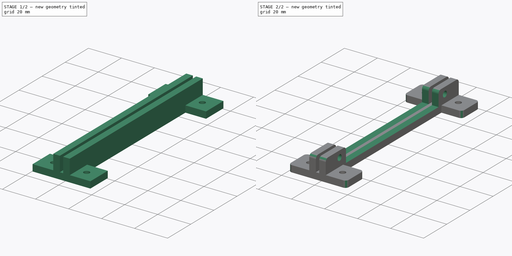
[diagram: build sequence overview — one tinted view per stage of 2, left to right]
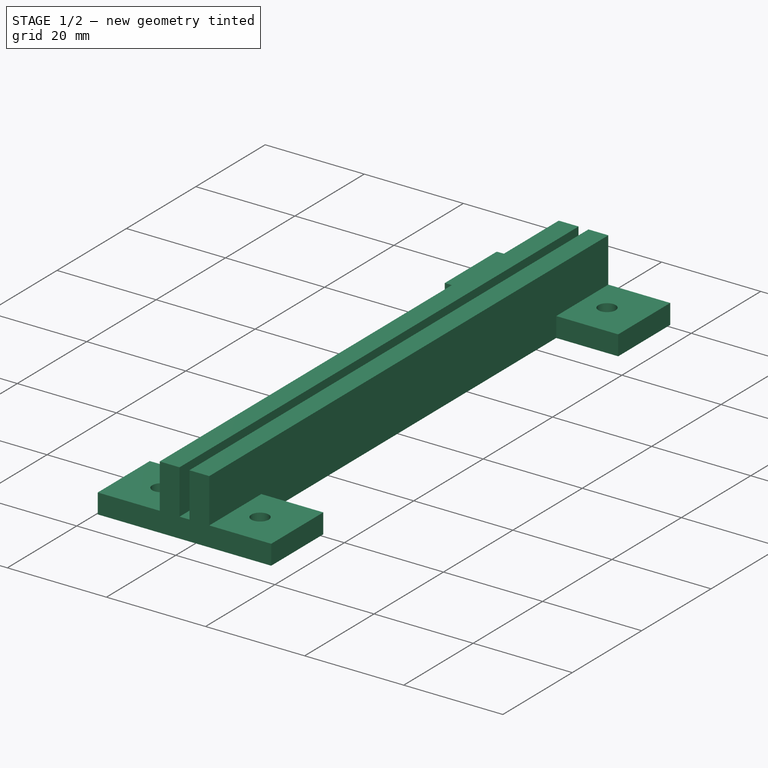
[diagram: stage 1 of 2 — iso view after this stage's code; geometry added in this stage tinted green]
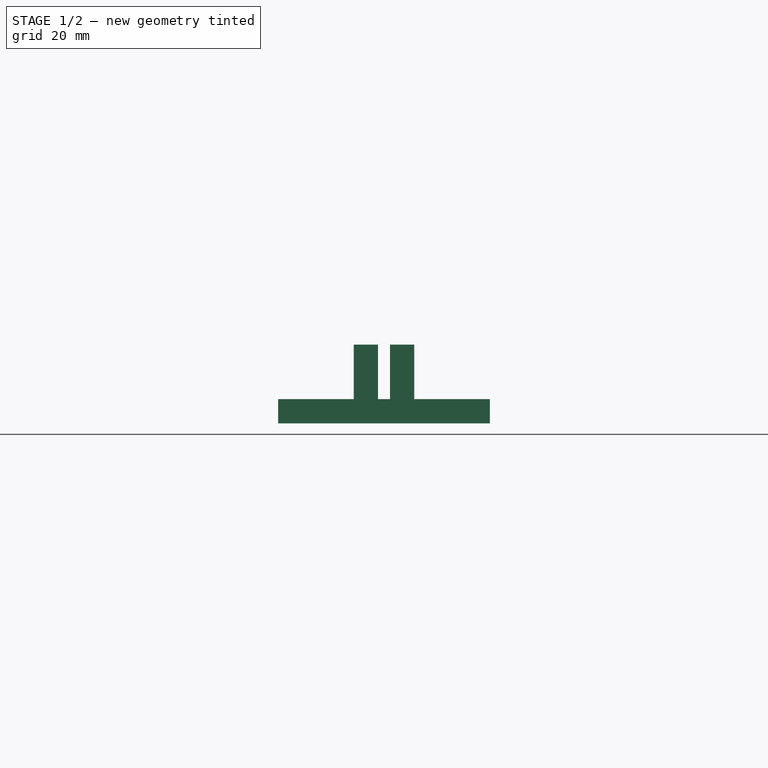
[diagram: stage 1 of 2 — front view after this stage's code; geometry added in this stage tinted green]
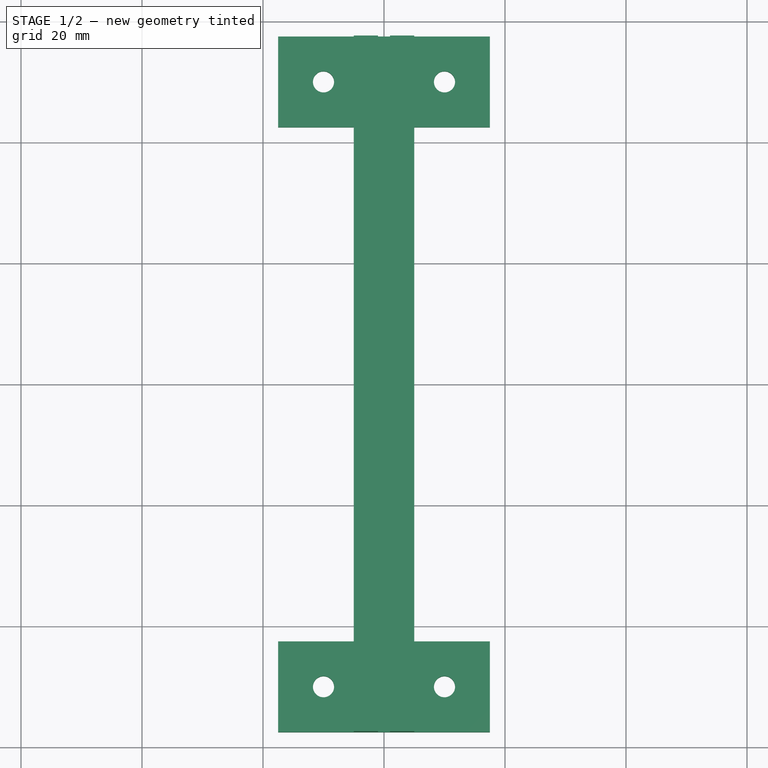
[diagram: stage 1 of 2 — top view after this stage's code; geometry added in this stage tinted green]
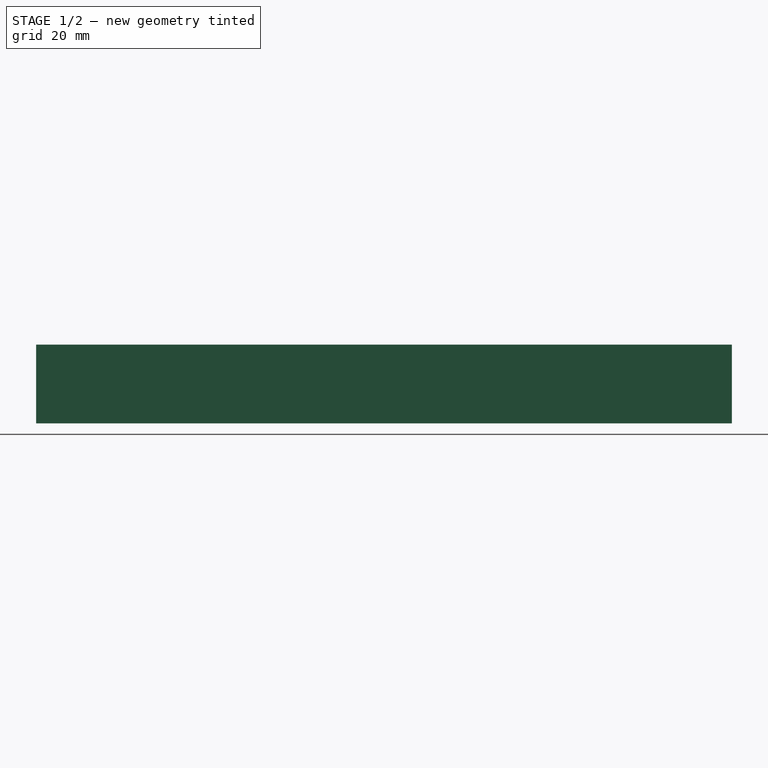
[diagram: stage 1 of 2 — right view after this stage's code; geometry added in this stage tinted green]
FCSTD DOCUMENT  (FreeCAD 0.21R33668 +26 (Git))
Label: KM5GT_Board_Mounting_Bracket_V12
License: All rights reserved
LicenseURL: http://en.wikipedia.org/wiki/All_rights_reserved
objects: Sketcher::SketchObject×3, PartDesign::Pad×2, PartDesign::Pocket×1, PartDesign::Fillet×1, PartDesign::Body×1
note: 12 computed .brp shape members not serialized (recipe doc carries the construction recipe); baked Part::Feature solids carry a one-line shape summary decoded from their .brp

FEATURE [Sketcher::SketchObject] Sketch  label="base"
  FullyConstrained = true
  MapMode = 5
  Support = -> [XY_Plane]
  expr: .Constraints.insideEdge = 85 mm / 2
  expr: Constraints[35] = -.Constraints.hOffset
  expr: Constraints[36] = -.Constraints.hOffset
  expr: Constraints[37] = .Constraints.hOffset
  expr: Constraints[39] = .Constraints.vOffset
  expr: Constraints[40] = -.Constraints.vOffset
  expr: Constraints[41] = -.Constraints.vOffset
  sketch-geometry (16):
    g0: LineSegment StartX=-17.5 StartY=57.5 StartZ=0 EndX=17.5 EndY=57.5 EndZ=0
    g1: LineSegment StartX=17.5 StartY=57.5 StartZ=0 EndX=17.5 EndY=42.5 EndZ=0
    g2: LineSegment StartX=17.5 StartY=42.5 StartZ=0 EndX=5 EndY=42.5 EndZ=0
    g3: LineSegment StartX=5 StartY=42.5 StartZ=0 EndX=5 EndY=-42.5 EndZ=0
    g4: LineSegment StartX=5 StartY=-42.5 StartZ=0 EndX=17.5 EndY=-42.5 EndZ=0
    g5: LineSegment StartX=17.5 StartY=-42.5 StartZ=0 EndX=17.5 EndY=-57.5 EndZ=0
    g6: LineSegment StartX=17.5 StartY=-57.5 StartZ=0 EndX=-17.5 EndY=-57.5 EndZ=0
    g7: LineSegment StartX=-17.5 StartY=-57.5 StartZ=0 EndX=-17.5 EndY=-42.5 EndZ=0
    g8: LineSegment StartX=-17.5 StartY=-42.5 StartZ=0 EndX=-5 EndY=-42.5 EndZ=0
    g9: LineSegment StartX=-5 StartY=-42.5 StartZ=0 EndX=-5 EndY=42.5 EndZ=0
    g10: LineSegment StartX=-5 StartY=42.5 StartZ=0 EndX=-17.5 EndY=42.5 EndZ=0
    g11: LineSegment StartX=-17.5 StartY=42.5 StartZ=0 EndX=-17.5 EndY=57.5 EndZ=0
    g12: Circle CenterX=-10 CenterY=50 CenterZ=0 NormalX=0 NormalY=0 NormalZ=1 AngleXU=0 Radius=1.75
    g13: Circle CenterX=10 CenterY=50 CenterZ=0 NormalX=0 NormalY=0 NormalZ=1 AngleXU=0 Radius=1.75
    g14: Circle CenterX=-10 CenterY=-50 CenterZ=0 NormalX=0 NormalY=0 NormalZ=1 AngleXU=0 Radius=1.75
    g15: Circle CenterX=10 CenterY=-50 CenterZ=0 NormalX=0 NormalY=0 NormalZ=1 AngleXU=0 Radius=1.75
  constraints (44):
    c: Coincident(g0,g1)
    c: Vertical(g1)
    c: Coincident(g1,g2)
    c: Horizontal(g2)
    c: Coincident(g2,g3)
    c: Coincident(g3,g4)
    c: Coincident(g4,g5)
    c: Vertical(g5)
    c: Coincident(g5,g6)
    c: Coincident(g6,g7)
    c: Vertical(g7)
    c: Coincident(g7,g8)
    c: Coincident(g8,g9)
    c: Vertical(g9)
    c: Coincident(g9,g10)
    c: Coincident(g10,g11)
    c: Coincident(g11,g0)
    c: Vertical(g11)
    c: Horizontal(g10)
    c: Symmetric(g0,g0,g-2)
    c: Symmetric(g6,g5,g-2)
    c: Symmetric(g2,g9,g-2)
    c: DistanceY(g11,g11) = 15
    c: Equal(g1,g7)
    c: Equal(g7,g5)
    c: Horizontal(g8)
    c: Horizontal(g4)
    c: DistanceX(g0,g0) = 35
    c: Equal(g0,g6)
    c: Distance(g8,g3) = 10  'wCenterBase'
    c: Symmetric(g2,g3,g-1)
    c: Equal(g12,g13)
    c: Equal(g12,g14)
    c: Equal(g12,g15)
    c: Diameter(g12) = 3.5
    c: DistanceX(g-2,g12) = -10
    c: DistanceX(g-2,g14) = -10
    c: DistanceX(g-2,g15) = 10
    c: DistanceY(g-1,g12) = 50  'vOffset'
    c: DistanceY(g-1,g13) = 50
    c: DistanceY(g-1,g14) = -50
    c: DistanceY(g-1,g15) = -50
    c: DistanceY(g-1,g10) = 42.5  'insideEdge'
    c: DistanceX(g-2,g13) = 10  'hOffset'
FEATURE [PartDesign::Pad] Pad  label="basePad"
  Direction = (0,0,1)
  Length = 4
  Length2 = 10
  Profile = -> Sketch
  ReferenceAxis = -> Sketch [N_Axis]
  Type = 0
FEATURE [Sketcher::SketchObject] Sketch001  label="pcbHolder"
  ExternalGeometry = -> [Sketch]
  FullyConstrained = true
  MapMode = 5
  Support = -> [XY_Plane]
  expr: .Constraints.holderWidth = (.Constraints.overallWidth - 2 mm) / 2
  expr: Constraints[24] = .Constraints.holderWidth
  sketch-geometry (8):
    g0: LineSegment StartX=-1 StartY=57.5 StartZ=0 EndX=-5 EndY=57.5 EndZ=0
    g1: LineSegment StartX=-5 StartY=57.5 StartZ=0 EndX=-5 EndY=-57.5 EndZ=0
    g2: LineSegment StartX=-5 StartY=-57.5 StartZ=0 EndX=-1 EndY=-57.5 EndZ=0
    g3: LineSegment StartX=-1 StartY=-57.5 StartZ=0 EndX=-1 EndY=57.5 EndZ=0
    g4: LineSegment StartX=5 StartY=57.5 StartZ=0 EndX=1 EndY=57.5 EndZ=0
    g5: LineSegment StartX=1 StartY=57.5 StartZ=0 EndX=1 EndY=-57.5 EndZ=0
    g6: LineSegment StartX=1 StartY=-57.5 StartZ=0 EndX=5 EndY=-57.5 EndZ=0
    g7: LineSegment StartX=5 StartY=-57.5 StartZ=0 EndX=5 EndY=57.5 EndZ=0
  constraints (25):
    c: Coincident(g0,g1)
    c: Coincident(g1,g2)
    c: Coincident(g2,g3)
    c: Coincident(g3,g0)
    c: Horizontal(g0)
    c: Horizontal(g2)
    c: Vertical(g1)
    c: Vertical(g3)
    c: PointOnObject(g0,g-3)
    c: PointOnObject(g1,g-4)
    c: Coincident(g4,g5)
    c: Coincident(g5,g6)
    c: Coincident(g6,g7)
    c: Coincident(g7,g4)
    c: Horizontal(g4)
    c: Horizontal(g6)
    c: Vertical(g5)
    c: Vertical(g7)
    c: PointOnObject(g4,g-3)
    c: PointOnObject(g5,g-4)
    c: PointOnObject(g-5,g1)
    c: PointOnObject(g-6,g7)
    c: Distance(g-5,g-6) = 10  'overallWidth'
    c: Distance(g0) = 4  'holderWidth'
    c: Distance(g4) = 4
FEATURE [PartDesign::Pad] Pad001  label="pcbHolderPad"
  BaseFeature = -> Pad
  Direction = (0,0,1)
  Length = 13
  Length2 = 10
  Profile = -> Sketch001
  ReferenceAxis = -> Sketch001 [N_Axis]
  Type = 0
  expr: Length = <<basePad>>.Length + 9 mm
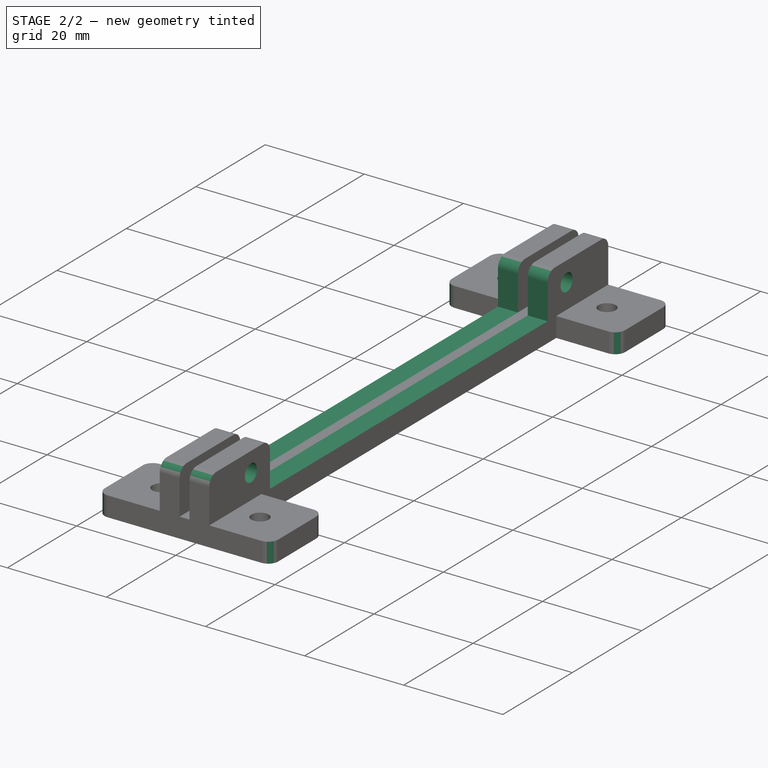
[diagram: stage 2 of 2 — iso view after this stage's code; geometry added in this stage tinted green]
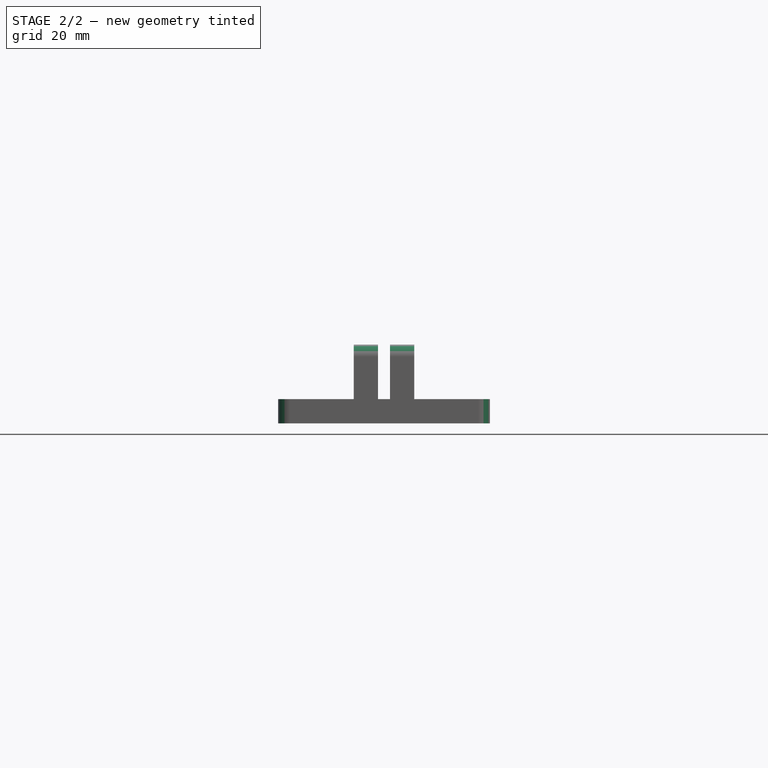
[diagram: stage 2 of 2 — front view after this stage's code; geometry added in this stage tinted green]
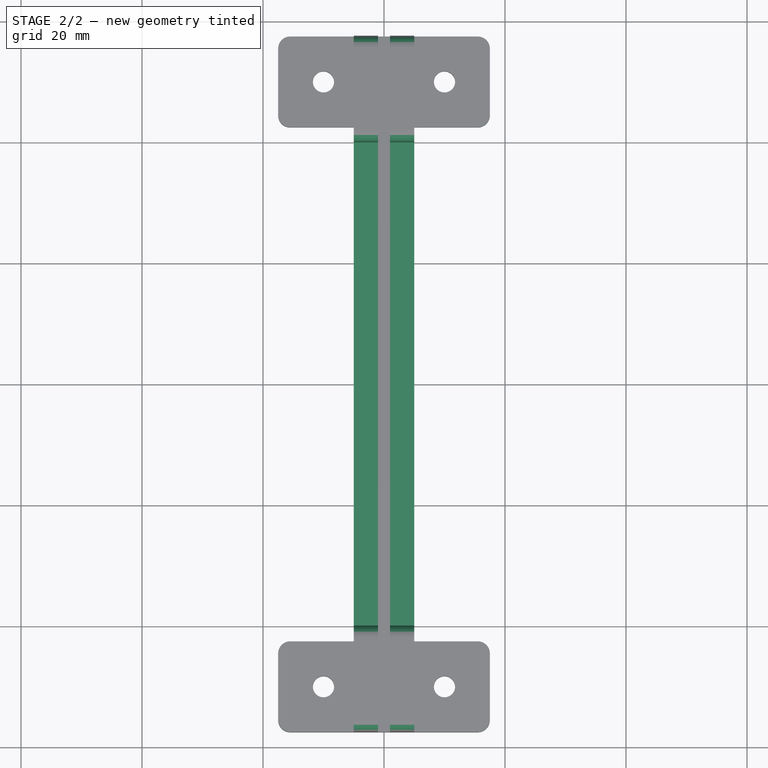
[diagram: stage 2 of 2 — top view after this stage's code; geometry added in this stage tinted green]
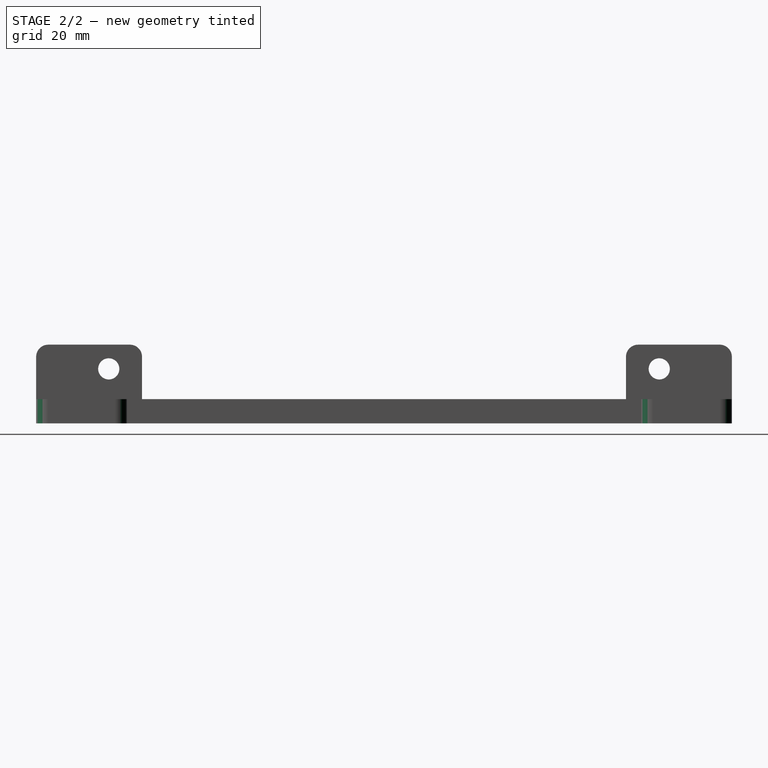
[diagram: stage 2 of 2 — right view after this stage's code; geometry added in this stage tinted green]
FEATURE [Sketcher::SketchObject] Sketch002  label="pcbCutout"
  FullyConstrained = true
  MapMode = 5
  Placement = pos=(0,0,0) rot=(0.57735,0.57735,0.57735;2.0944rad)
  Support = -> [YZ_Plane]
  expr: .Constraints.vHoleOffset = <<basePad>>.Length + 5 mm
  expr: Constraints[15] = -.Constraints.slotToCenterline
  expr: Constraints[17] = <<basePad>>.Length
  expr: Constraints[1] = -.Constraints.hHoleOffset
  expr: Constraints[3] = .Constraints.vHoleOffset
  sketch-geometry (6):
    g0: Circle CenterX=45.5 CenterY=9 CenterZ=0 NormalX=0 NormalY=0 NormalZ=1 AngleXU=0 Radius=1.75
    g1: Circle CenterX=-45.5 CenterY=9 CenterZ=0 NormalX=0 NormalY=0 NormalZ=1 AngleXU=0 Radius=1.75
    g2: LineSegment StartX=-40 StartY=13 StartZ=0 EndX=40 EndY=13 EndZ=0
    g3: LineSegment StartX=40 StartY=13 StartZ=0 EndX=40 EndY=4 EndZ=0
    g4: LineSegment StartX=40 StartY=4 StartZ=0 EndX=-40 EndY=4 EndZ=0
    g5: LineSegment StartX=-40 StartY=4 StartZ=0 EndX=-40 EndY=13 EndZ=0
  constraints (18):
    c: DistanceX(g-2,g0) = 45.5  'hHoleOffset'
    c: DistanceX(g-2,g1) = -45.5
    c: DistanceY(g-1,g1) = 9  'vHoleOffset'
    c: DistanceY(g-1,g0) = 9
    c: Diameter(g1) = 3.5  'holeDiameter'
    c: Equal(g1,g0)
    c: Coincident(g2,g3)
    c: Coincident(g3,g4)
    c: Coincident(g4,g5)
    c: Coincident(g5,g2)
    c: Horizontal(g2)
    c: Horizontal(g4)
    c: Vertical(g3)
    c: Vertical(g5)
    c: DistanceX(g-2,g3) = 40  'slotToCenterline'
    c: DistanceX(g-2,g4) = -40
    c: DistanceY(g3,g3) = 9
    c: DistanceY(g-1,g4) = 4
FEATURE [PartDesign::Pocket] Pocket  label="pcbPocketCutout"
  BaseFeature = -> Pad001
  Direction = (-1,2e-16,-3e-16)
  Length = 10
  Length2 = 5
  Profile = -> Sketch002
  ReferenceAxis = -> Sketch002 [N_Axis]
  Type = 4
  expr: Length = <<base>>.Constraints.wCenterBase
FEATURE [PartDesign::Fillet] Fillet
  Base = -> Pocket [Edge109,Edge141,Edge52,Edge117,Edge27,Edge83,Edge80,Edge111,Edge136,Edge66,Edge124,Edge131,Edge68,Edge63,Edge16,Edge4]
  BaseFeature = -> Pocket
  Radius = 2
  SupportTransform = false
  UseAllEdges = false
FEATURE [PartDesign::Body] Body
  Group = -> [Sketch,Pad,Sketch001,Pad001,Sketch002,Pocket,Fillet]
  Origin = -> Origin
  Tip = -> Fillet
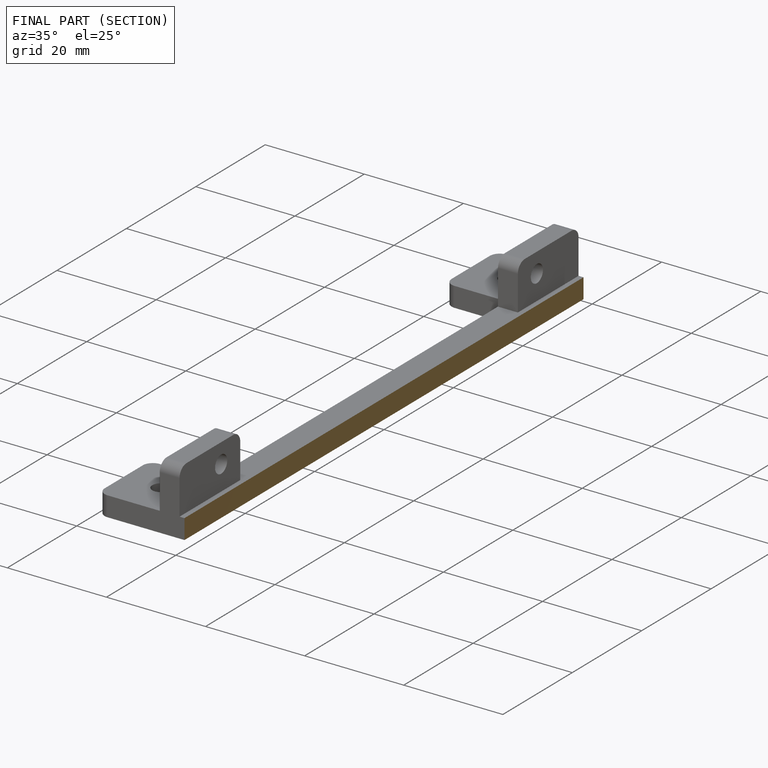
[diagram: finished part — half-section view (interior)]
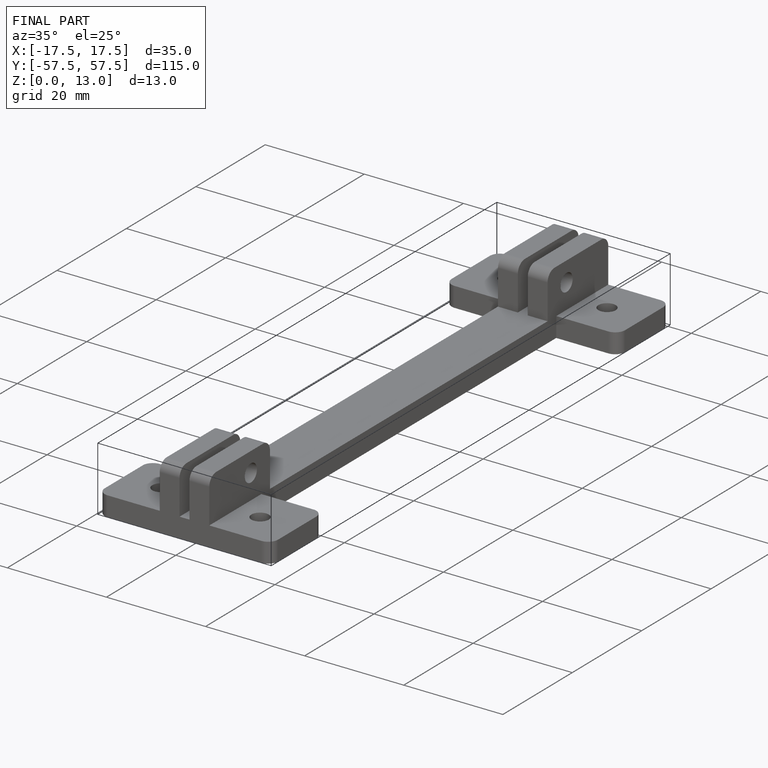
[diagram: finished part — iso view with bounding-box wireframe]
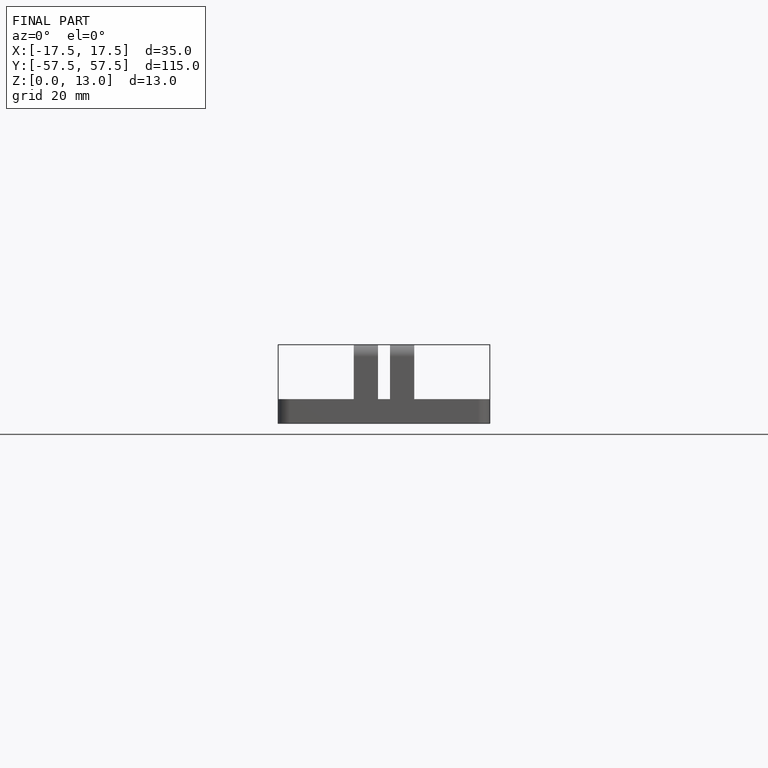
[diagram: finished part — front view with bounding-box wireframe]
